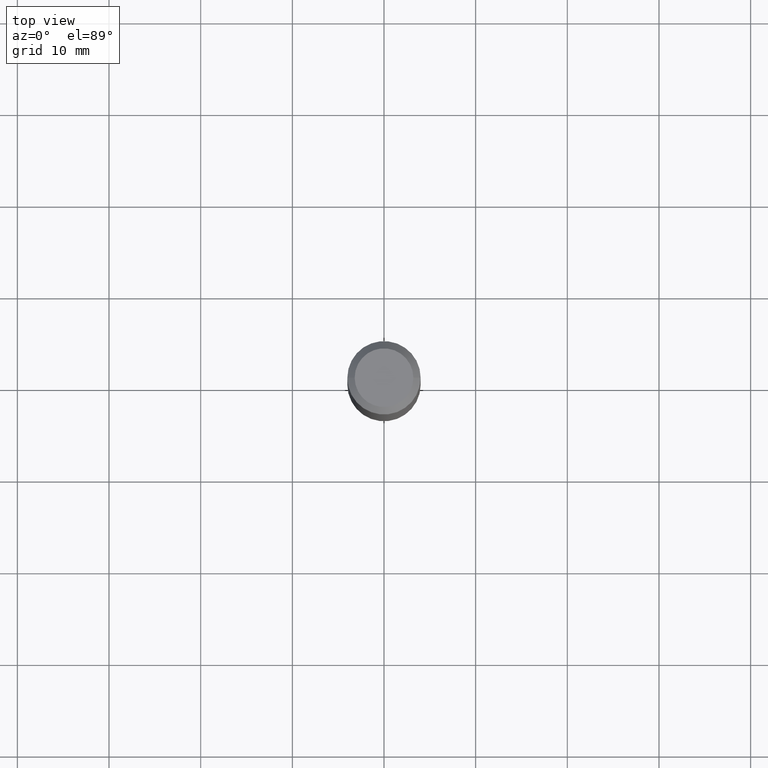
[diagram: clean part render]
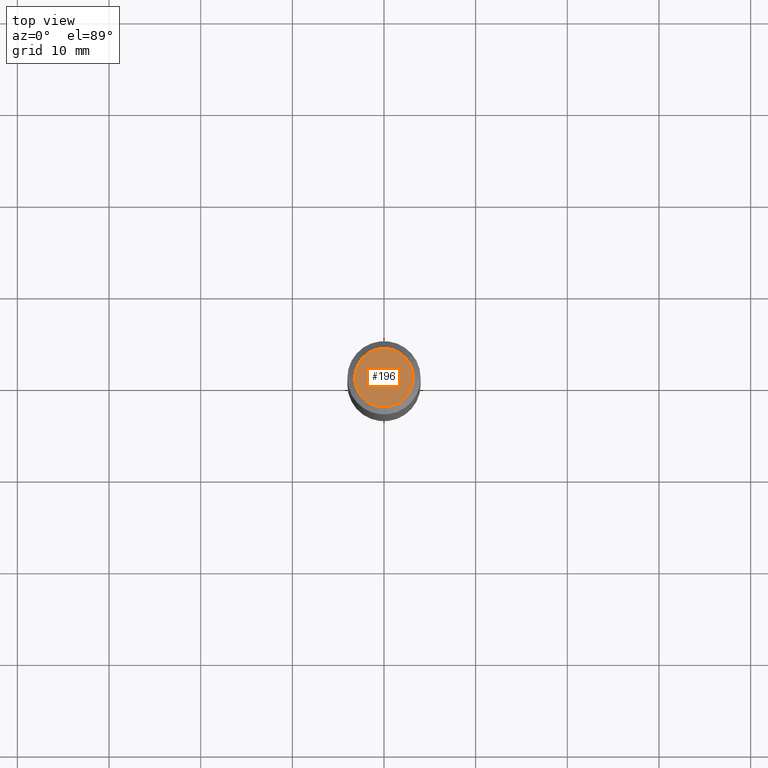
[diagram: same view with one face highlighted and labeled with its STEP entity id]
A machine part, top view. The second image highlights one B-rep face of the part: STEP entity #196.
In plain terms, the highlighted planar face has unit normal (0, -0, -1).
Its self-contained STEP definition (entity closure, byte-faithful):
#9 = DIRECTION ( 'NONE',  ( 1.000000000000000000, -6.982962677686265922E-15, 4.876281427513067258E-29 ) ) ;
#10 = DIRECTION ( 'NONE',  ( 1.000000000000000000, -6.982962677686265922E-15, 4.876281427513067258E-29 ) ) ;
#25 = AXIS2_PLACEMENT_3D ( 'NONE', #59, #398, #9 ) ;
#59 = CARTESIAN_POINT ( 'NONE',  ( -9.439721640706201686E-47, 1.347742071746726764E-32, 3.860086710912459732E-18 ) ) ;
#61 = AXIS2_PLACEMENT_3D ( 'NONE', #295, #407, #107 ) ;
#107 = DIRECTION ( 'NONE',  ( -1.000000000000000000, 6.982962677686265922E-15, -4.876176775795935793E-29 ) ) ;
#121 = AXIS2_PLACEMENT_3D ( 'NONE', #160, #201, #10 ) ;
#154 = PLANE ( 'NONE',  #61 ) ;
#160 = CARTESIAN_POINT ( 'NONE',  ( -9.439721640706201686E-47, 1.347742071746726764E-32, 3.860086710912459732E-18 ) ) ;
#196 = ADVANCED_FACE ( 'NONE', ( #247 ), #154, .F. ) ;
#201 = DIRECTION ( 'NONE',  ( -2.445468806185136597E-29, 3.491481338843145583E-15, 1.000000000000000000 ) ) ;
#243 = ORIENTED_EDGE ( 'NONE', *, *, #309, .T. ) ;
#247 = FACE_OUTER_BOUND ( 'NONE', #348, .T. ) ;
#295 = CARTESIAN_POINT ( 'NONE',  ( -4.719860820353100843E-47, 6.738710358733633822E-33, 1.930043355456229866E-18 ) ) ;
#297 = CARTESIAN_POINT ( 'NONE',  ( 0.1260000000000000009, -1.027466422270894443E-15, 3.860086710919128072E-18 ) ) ;
#309 = EDGE_CURVE ( 'NONE', #474, #397, #383, .T. ) ;
#348 = EDGE_LOOP ( 'NONE', ( #243, #457 ) ) ;
#383 = CIRCLE ( 'NONE', #25, 0.1260000000000000009 ) ;
#397 = VERTEX_POINT ( 'NONE', #297 ) ;
#398 = DIRECTION ( 'NONE',  ( -2.445468806185136597E-29, 3.491481338843145583E-15, 1.000000000000000000 ) ) ;
#407 = DIRECTION ( 'NONE',  ( 2.438088387897960049E-29, -3.491481338843145188E-15, -1.000000000000000000 ) ) ;
#431 = CIRCLE ( 'NONE', #121, 0.1260000000000000009 ) ;
#457 = ORIENTED_EDGE ( 'NONE', *, *, #477, .T. ) ;
#462 = CARTESIAN_POINT ( 'NONE',  ( -0.1260000000000000009, 9.348441284752484904E-16, 3.860086710906114178E-18 ) ) ;
#474 = VERTEX_POINT ( 'NONE', #462 ) ;
#477 = EDGE_CURVE ( 'NONE', #397, #474, #431, .T. ) ;